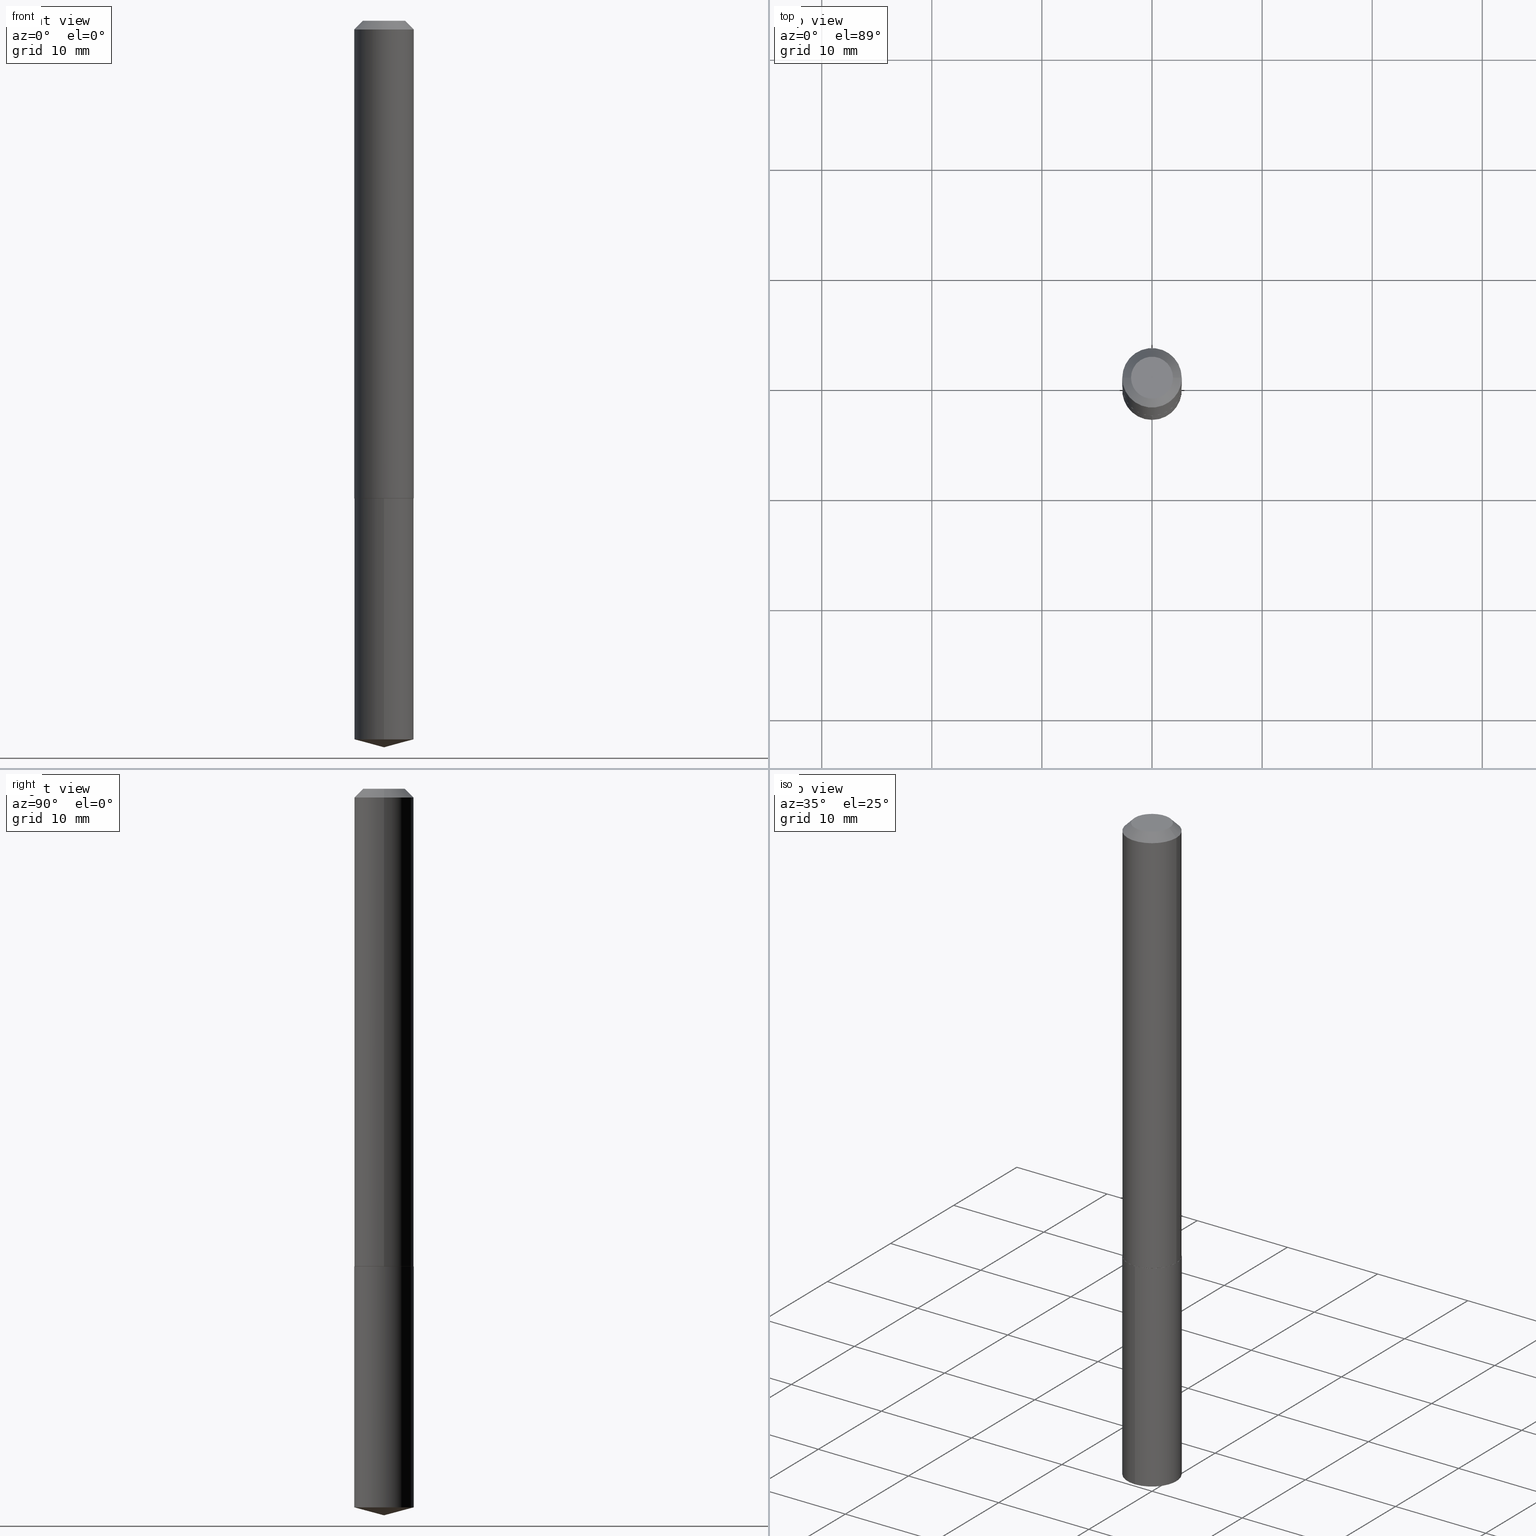
[diagram: canonical four-view strip — front | top / right | iso, engineering-drawing reading convention]
A machine part, canonical four-view strip (front | top / right | iso — engineering-drawing reading convention). The complete STEP part file that produces these views, byte-faithful:
ISO-10303-21;
HEADER;
FILE_DESCRIPTION (( 'STEP AP203' ),
    '1' );
FILE_NAME ('68989.STEP',
    '2024-04-23T14:06:40',
    ( '' ),
    ( '' ),
    'SwSTEP 2.0',
    'SolidWorks 2023',
    '' );
FILE_SCHEMA (( 'CONFIG_CONTROL_DESIGN' ));
ENDSEC;

DATA;
#1 = PERSON_AND_ORGANIZATION ( #166, #244 ) ;
#2 = EDGE_CURVE ( 'NONE', #30, #303, #114, .T. ) ;
#3 = ORIENTED_EDGE ( 'NONE', *, *, #242, .T. ) ;
#4 = DIRECTION ( 'NONE',  ( -2.445468806185136597E-29, 3.491481338843145583E-15, 1.000000000000000000 ) ) ;
#5 = VERTEX_POINT ( 'NONE', #233 ) ;
#6 = AXIS2_PLACEMENT_3D ( 'NONE', #266, #241, #385 ) ;
#7 = VECTOR ( 'NONE', #258, 39.37007874015748143 ) ;
#9 = DIRECTION ( 'NONE',  ( -2.445468806185136597E-29, 3.491481338843145583E-15, 1.000000000000000000 ) ) ;
#8 = APPROVAL_PERSON_ORGANIZATION ( #328, #306, #221 ) ;
#10 = ADVANCED_FACE ( 'NONE', ( #250 ), #268, .T. ) ;
#11 = EDGE_LOOP ( 'NONE', ( #197, #262 ) ) ;
#12 = APPROVAL_STATUS ( 'not_yet_approved' ) ;
#13 = SECURITY_CLASSIFICATION_LEVEL ( 'unclassified' ) ;
#14 = DESIGN_CONTEXT ( 'detailed design', #147, 'design' ) ;
#15 = ORIENTED_EDGE ( 'NONE', *, *, #269, .T. ) ;
#16 = PERSON_AND_ORGANIZATION ( #166, #244 ) ;
#17 = CONICAL_SURFACE ( 'NONE', #253, 0.1063000000000002415, 0.7853981633972434429 ) ;
#18 = APPROVAL_PERSON_ORGANIZATION ( #16, #333, #19 ) ;
#19 = APPROVAL_ROLE ( '' ) ;
#20 = PLANE ( 'NONE',  #230 ) ;
#21 = CARTESIAN_POINT ( 'NONE',  ( -5.839929314523221596E-48, 8.337871319499147471E-34, 2.388061258337352918E-19 ) ) ;
#22 = CIRCLE ( 'NONE', #358, 0.1063000000000002415 ) ;
#23 = EDGE_CURVE ( 'NONE', #119, #239, #315, .T. ) ;
#24 = DIRECTION ( 'NONE',  ( 1.000000000000000000, -6.982962677686265133E-15, 0.000000000000000000 ) ) ;
#25 = CARTESIAN_POINT ( 'NONE',  ( 0.1063000000000000056, -8.513977244768991407E-16, -0.03125000000000019429 ) ) ;
#26 = CARTESIAN_POINT ( 'NONE',  ( 4.178328002247923804E-29, -5.965545015547398653E-15, -1.708599999999999897 ) ) ;
#27 = CYLINDRICAL_SURFACE ( 'NONE', #351, 0.1063000000000001166 ) ;
#28 = VECTOR ( 'NONE', #375, 39.37007874015748143 ) ;
#29 = DIRECTION ( 'NONE',  ( -6.982962677686265922E-15, -1.000000000000000000, 2.569941668545873170E-15 ) ) ;
#30 = VERTEX_POINT ( 'NONE', #287 ) ;
#31 = ORIENTED_EDGE ( 'NONE', *, *, #319, .T. ) ;
#32 = APPLICATION_PROTOCOL_DEFINITION ( 'international standard', 'config_control_design', 1994, #102 ) ;
#33 =( LENGTH_UNIT ( ) NAMED_UNIT ( * ) SI_UNIT ( $, .METRE. ) );
#34 = DIRECTION ( 'NONE',  ( -1.000000000000000000, 6.982962677686267499E-15, 0.000000000000000000 ) ) ;
#35 = CIRCLE ( 'NONE', #322, 0.1063000000000000056 ) ;
#36 = ADVANCED_FACE ( 'NONE', ( #229 ), #311, .T. ) ;
#37 = CARTESIAN_POINT ( 'NONE',  ( -0.1063000000000001166, 7.553069281129873262E-16, -5.228828000940970663E-30 ) ) ;
#38 = ORIENTED_EDGE ( 'NONE', *, *, #281, .F. ) ;
#39 = DATE_AND_TIME ( #337, #184 ) ;
#40 = EDGE_LOOP ( 'NONE', ( #245, #247 ) ) ;
#41 = PERSON_AND_ORGANIZATION ( #166, #244 ) ;
#42 = CIRCLE ( 'NONE', #95, 0.1063000000000000056 ) ;
#43 = DIRECTION ( 'NONE',  ( -2.445559257304033306E-29, 3.491351807692727291E-15, 1.000000000000000000 ) ) ;
#44 = ORIENTED_EDGE ( 'NONE', *, *, #336, .F. ) ;
#45 = ORIENTED_EDGE ( 'NONE', *, *, #163, .T. ) ;
#46 = DATE_TIME_ROLE ( 'classification_date' ) ;
#47 = CC_DESIGN_PERSON_AND_ORGANIZATION_ASSIGNMENT ( #41, #331, ( #261 ) ) ;
#48 = CARTESIAN_POINT ( 'NONE',  ( 6.284729767136713731E-29, -8.972705683442572229E-15, -2.569917000844571753 ) ) ;
#49 = VERTEX_POINT ( 'NONE', #349 ) ;
#50 = SHAPE_DEFINITION_REPRESENTATION ( #190, #90 ) ;
#51 = CC_DESIGN_APPROVAL ( #312, ( #68 ) ) ;
#52 = CARTESIAN_POINT ( 'NONE',  ( 7.553069281130489560E-16, 0.1062999999999909850, -2.569917000844572197 ) ) ;
#53 = CARTESIAN_POINT ( 'NONE',  ( 4.178328002247923804E-29, -5.965545015547398653E-15, -1.708599999999999897 ) ) ;
#54 = VECTOR ( 'NONE', #175, 39.37007874015748143 ) ;
#55 = CONICAL_SURFACE ( 'NONE', #98, 0.1063000000000000056, 0.7853981633974452814 ) ;
#56 = EDGE_CURVE ( 'NONE', #49, #239, #35, .T. ) ;
#57 = ORIENTED_EDGE ( 'NONE', *, *, #140, .F. ) ;
#58 = FACE_OUTER_BOUND ( 'NONE', #364, .T. ) ;
#59 = EDGE_CURVE ( 'NONE', #30, #94, #379, .T. ) ;
#60 = AXIS2_PLACEMENT_3D ( 'NONE', #360, #323, #128 ) ;
#61 = LOCAL_TIME ( 10, 6, 40.00000000000000000, #136 ) ;
#62 = DIRECTION ( 'NONE',  ( 6.982962677686265922E-15, 1.000000000000000000, -3.491351807692727291E-15 ) ) ;
#63 = CYLINDRICAL_SURFACE ( 'NONE', #389, 0.1063000000000000056 ) ;
#64 = PERSON_AND_ORGANIZATION ( #166, #244 ) ;
#65 = AXIS2_PLACEMENT_3D ( 'NONE', #288, #108, #223 ) ;
#66 = APPROVAL_PERSON_ORGANIZATION ( #1, #312, #240 ) ;
#67 = VERTEX_POINT ( 'NONE', #338 ) ;
#68 = PRODUCT_DEFINITION ( 'UNKNOWN', '', #107, #14 ) ;
#69 = EDGE_LOOP ( 'NONE', ( #353, #246, #162, #124 ) ) ;
#70 = ADVANCED_FACE ( 'NONE', ( #85 ), #231, .T. ) ;
#71 = ORIENTED_EDGE ( 'NONE', *, *, #208, .F. ) ;
#72 = AXIS2_PLACEMENT_3D ( 'NONE', #125, #99, #257 ) ;
#73 = ORIENTED_EDGE ( 'NONE', *, *, #56, .T. ) ;
#74 = CALENDAR_DATE ( 2024, 23, 4 ) ;
#75 = DIRECTION ( 'NONE',  ( 1.000000000000000000, -6.982962677686262766E-15, 0.000000000000000000 ) ) ;
#76 = ORIENTED_EDGE ( 'NONE', *, *, #202, .F. ) ;
#77 = CLOSED_SHELL ( 'NONE', ( #172, #182, #120, #36, #116 ) ) ;
#78 = DIRECTION ( 'NONE',  ( -2.445559257304033306E-29, 3.491351807692727291E-15, 1.000000000000000000 ) ) ;
#79 = DIRECTION ( 'NONE',  ( -2.445468806185136597E-29, 3.491481338843145583E-15, 1.000000000000000000 ) ) ;
#80 = EDGE_CURVE ( 'NONE', #186, #49, #292, .T. ) ;
#81 = DIRECTION ( 'NONE',  ( -2.445468806185136597E-29, 3.491481338843145583E-15, 1.000000000000000000 ) ) ;
#82 = AXIS2_PLACEMENT_3D ( 'NONE', #291, #158, #203 ) ;
#83 = DIRECTION ( 'NONE',  ( -2.445559257304033306E-29, 3.491351807692727291E-15, 1.000000000000000000 ) ) ;
#84 = DIRECTION ( 'NONE',  ( -2.445468806185136597E-29, 3.491481338843145583E-15, 1.000000000000000000 ) ) ;
#85 = FACE_OUTER_BOUND ( 'NONE', #279, .T. ) ;
#86 = CARTESIAN_POINT ( 'NONE',  ( 4.178328002247923804E-29, -5.965545015547398653E-15, -1.708599999999999897 ) ) ;
#87 = AXIS2_PLACEMENT_3D ( 'NONE', #53, #286, #24 ) ;
#88 = DIRECTION ( 'NONE',  ( 1.000000000000000000, 0.000000000000000000, 0.000000000000000000 ) ) ;
#89 = CC_DESIGN_DATE_AND_TIME_ASSIGNMENT ( #219, #180, ( #68 ) ) ;
#90 = ADVANCED_BREP_SHAPE_REPRESENTATION ( '68989', ( #384, #252, #367 ), #177 ) ;
#91 = CARTESIAN_POINT ( 'NONE',  ( -0.1063000000000002415, -5.208492346764989429E-15, -1.708099999999999952 ) ) ;
#92 = CALENDAR_DATE ( 2024, 23, 4 ) ;
#93 = CARTESIAN_POINT ( 'NONE',  ( -7.422889326379869312E-16, -0.1063000000000089568, -2.569917000844570865 ) ) ;
#94 = VERTEX_POINT ( 'NONE', #93 ) ;
#95 = AXIS2_PLACEMENT_3D ( 'NONE', #340, #78, #189 ) ;
#96 = ORIENTED_EDGE ( 'NONE', *, *, #281, .T. ) ;
#97 = EDGE_LOOP ( 'NONE', ( #161, #126, #45, #44 ) ) ;
#98 = AXIS2_PLACEMENT_3D ( 'NONE', #235, #157, #34 ) ;
#99 = DIRECTION ( 'NONE',  ( -2.445468806185136597E-29, 3.491481338843145583E-15, 1.000000000000000000 ) ) ;
#100 = ORIENTED_EDGE ( 'NONE', *, *, #345, .T. ) ;
#101 = APPROVAL_STATUS ( 'not_yet_approved' ) ;
#102 = APPLICATION_CONTEXT ( 'configuration controlled 3d designs of mechanical parts and assemblies' ) ;
#103 = DIRECTION ( 'NONE',  ( -2.445468806185136597E-29, 3.491481338843145583E-15, 1.000000000000000000 ) ) ;
#104 = APPROVAL_DATE_TIME ( #302, #333 ) ;
#105 = DIRECTION ( 'NONE',  ( 2.438088387897960049E-29, -3.491481338843145188E-15, -1.000000000000000000 ) ) ;
#106 = VECTOR ( 'NONE', #207, 39.37007874015748143 ) ;
#107 = PRODUCT_DEFINITION_FORMATION_WITH_SPECIFIED_SOURCE ( 'ANY', '', #138, .NOT_KNOWN. ) ;
#108 = DIRECTION ( 'NONE',  ( -2.445468806185136597E-29, 3.491481338843145583E-15, 1.000000000000000000 ) ) ;
#109 = CARTESIAN_POINT ( 'NONE',  ( 4.178328002247923804E-29, -5.965545015547398653E-15, -1.708599999999999897 ) ) ;
#111 = EDGE_LOOP ( 'NONE', ( #129, #215, #381, #357 ) ) ;
#110 = AXIS2_PLACEMENT_3D ( 'NONE', #347, #9, #296 ) ;
#112 = CARTESIAN_POINT ( 'NONE',  ( 0.1058000000000005464, -6.704342466846608940E-15, -1.708599999999999897 ) ) ;
#113 = DIRECTION ( 'NONE',  ( -2.445559257304033306E-29, 3.491351807692727291E-15, 1.000000000000000000 ) ) ;
#114 = LINE ( 'NONE', #135, #387 ) ;
#115 = ORIENTED_EDGE ( 'NONE', *, *, #137, .F. ) ;
#116 = ADVANCED_FACE ( 'NONE', ( #363 ), #155, .F. ) ;
#117 = FACE_OUTER_BOUND ( 'NONE', #265, .T. ) ;
#118 = CARTESIAN_POINT ( 'NONE',  ( 0.1063000000000002415, -6.706088207516028077E-15, -1.708099999999999952 ) ) ;
#119 = VERTEX_POINT ( 'NONE', #118 ) ;
#120 = ADVANCED_FACE ( 'NONE', ( #210 ), #372, .T. ) ;
#121 = FACE_OUTER_BOUND ( 'NONE', #327, .T. ) ;
#122 = DIMENSIONAL_EXPONENTS ( 1.000000000000000000, 0.000000000000000000, 0.000000000000000000, 0.000000000000000000, 0.000000000000000000, 0.000000000000000000, 0.000000000000000000 ) ;
#123 = FACE_OUTER_BOUND ( 'NONE', #368, .T. ) ;
#124 = ORIENTED_EDGE ( 'NONE', *, *, #378, .F. ) ;
#125 = CARTESIAN_POINT ( 'NONE',  ( 4.177105267844832123E-29, -5.963799274877977150E-15, -1.708099999999999952 ) ) ;
#126 = ORIENTED_EDGE ( 'NONE', *, *, #228, .T. ) ;
#127 = AXIS2_PLACEMENT_3D ( 'NONE', #282, #283, #343 ) ;
#128 = DIRECTION ( 'NONE',  ( -6.982962677686266711E-15, -1.000000000000000000, 3.510303681827621500E-15 ) ) ;
#129 = ORIENTED_EDGE ( 'NONE', *, *, #80, .F. ) ;
#130 = DIRECTION ( 'NONE',  ( -2.445468806185136597E-29, 3.491481338843145583E-15, 1.000000000000000000 ) ) ;
#131 = VERTEX_POINT ( 'NONE', #213 ) ;
#132 = COORDINATED_UNIVERSAL_TIME_OFFSET ( 5, 0, .BEHIND. ) ;
#133 = ORIENTED_EDGE ( 'NONE', *, *, #23, .F. ) ;
#134 = COORDINATED_UNIVERSAL_TIME_OFFSET ( 5, 0, .BEHIND. ) ;
#135 = CARTESIAN_POINT ( 'NONE',  ( 6.354543884529420108E-29, -9.071928537108783114E-15, -2.598399999999999821 ) ) ;
#136 = COORDINATED_UNIVERSAL_TIME_OFFSET ( 5, 0, .BEHIND. ) ;
#137 = EDGE_CURVE ( 'NONE', #94, #5, #326, .T. ) ;
#138 = PRODUCT ( '68989', '68989', '', ( #206 ) ) ;
#139 = CARTESIAN_POINT ( 'NONE',  ( 6.284729767136713731E-29, -8.972705683442572229E-15, -2.569917000844571753 ) ) ;
#140 = EDGE_CURVE ( 'NONE', #186, #119, #22, .T. ) ;
#141 = DIRECTION ( 'NONE',  ( 1.000000000000000000, -6.982962677686265922E-15, 4.876182450887181548E-29 ) ) ;
#142 = VECTOR ( 'NONE', #167, 39.37007874015748143 ) ;
#143 = FACE_OUTER_BOUND ( 'NONE', #276, .T. ) ;
#144 = EDGE_CURVE ( 'NONE', #303, #94, #332, .T. ) ;
#145 = CARTESIAN_POINT ( 'NONE',  ( 7.642090019328599159E-31, -1.091087918388489774E-16, -0.03125000000000019429 ) ) ;
#146 = DIRECTION ( 'NONE',  ( 1.000000000000000000, -6.982962677686266711E-15, 4.876176775795935793E-29 ) ) ;
#147 = APPLICATION_CONTEXT ( 'configuration controlled 3d designs of mechanical parts and assemblies' ) ;
#148 = AXIS2_PLACEMENT_3D ( 'NONE', #21, #81, #141 ) ;
#149 = LENGTH_MEASURE_WITH_UNIT ( LENGTH_MEASURE( 0.02539999999999999897 ), #33 );
#150 = ADVANCED_FACE ( 'NONE', ( #260 ), #275, .T. ) ;
#151 = PERSON_AND_ORGANIZATION_ROLE ( 'design_owner' ) ;
#152 = DIRECTION ( 'NONE',  ( -2.445559257304033306E-29, 3.491351807692727291E-15, 1.000000000000000000 ) ) ;
#153 = AXIS2_PLACEMENT_3D ( 'NONE', #284, #342, #176 ) ;
#154 = DIRECTION ( 'NONE',  ( -6.982962677686265922E-15, -1.000000000000000000, 2.569941668545873170E-15 ) ) ;
#155 = PLANE ( 'NONE',  #243 ) ;
#156 = EDGE_LOOP ( 'NONE', ( #214, #289, #160 ) ) ;
#157 = DIRECTION ( 'NONE',  ( 2.445468806185136597E-29, -3.491481338843145583E-15, -1.000000000000000000 ) ) ;
#158 = DIRECTION ( 'NONE',  ( -2.445468806185136597E-29, 3.491481338843145583E-15, 1.000000000000000000 ) ) ;
#159 = CARTESIAN_POINT ( 'NONE',  ( 4.178328002247923804E-29, -5.965545015547398653E-15, -1.708599999999999897 ) ) ;
#160 = ORIENTED_EDGE ( 'NONE', *, *, #144, .F. ) ;
#161 = ORIENTED_EDGE ( 'NONE', *, *, #319, .F. ) ;
#162 = ORIENTED_EDGE ( 'NONE', *, *, #137, .T. ) ;
#163 = EDGE_CURVE ( 'NONE', #239, #49, #294, .T. ) ;
#164 = CARTESIAN_POINT ( 'NONE',  ( 0.1063000000000001166, -7.422889326380509276E-16, 5.183375912671085656E-30 ) ) ;
#165 = CIRCLE ( 'NONE', #211, 0.1063000000000000056 ) ;
#166 = PERSON ( 'UNSPECIFIED', 'UNSPECIFIED', 'UNSPECIFIED', ('UNSPECIFIED'), ('UNSPECIFIED'), ('UNSPECIFIED') ) ;
#167 = DIRECTION ( 'NONE',  ( 0.7071067811865453523, -7.319954787623248157E-15, -0.7071067811865496822 ) ) ;
#168 = CARTESIAN_POINT ( 'NONE',  ( -0.1058000000000005464, -5.211141573939099053E-15, -1.708599999999999897 ) ) ;
#169 = CONICAL_SURFACE ( 'NONE', #6, 146.9311341562558084, 1.308996938995748538 ) ;
#170 = LOCAL_TIME ( 10, 6, 40.00000000000000000, #355 ) ;
#171 = LINE ( 'NONE', #227, #142 ) ;
#172 = ADVANCED_FACE ( 'NONE', ( #123 ), #63, .T. ) ;
#173 = AXIS2_PLACEMENT_3D ( 'NONE', #26, #113, #264 ) ;
#175 = DIRECTION ( 'NONE',  ( -2.445468806185136877E-29, 3.491481338843145188E-15, 1.000000000000000000 ) ) ;
#174 = CIRCLE ( 'NONE', #87, 0.1058000000000005464 ) ;
#176 = DIRECTION ( 'NONE',  ( 1.000000000000000000, -6.982962677686262766E-15, 0.000000000000000000 ) ) ;
#177 =( GEOMETRIC_REPRESENTATION_CONTEXT ( 3 ) GLOBAL_UNCERTAINTY_ASSIGNED_CONTEXT ( ( #359 ) ) GLOBAL_UNIT_ASSIGNED_CONTEXT ( ( #263, #383, #201 ) ) REPRESENTATION_CONTEXT ( 'NONE', 'WORKASPACE' ) );
#178 = PERSON_AND_ORGANIZATION_ROLE ( 'creator' ) ;
#179 = ORIENTED_EDGE ( 'NONE', *, *, #254, .T. ) ;
#180 = DATE_TIME_ROLE ( 'creation_date' ) ;
#181 = ORIENTED_EDGE ( 'NONE', *, *, #202, .T. ) ;
#182 = ADVANCED_FACE ( 'NONE', ( #121 ), #169, .T. ) ;
#183 = APPROVAL_DATE_TIME ( #39, #306 ) ;
#184 = LOCAL_TIME ( 10, 6, 40.00000000000000000, #132 ) ;
#185 = ADVANCED_FACE ( 'NONE', ( #117 ), #17, .T. ) ;
#186 = VERTEX_POINT ( 'NONE', #354 ) ;
#187 = CALENDAR_DATE ( 2024, 23, 4 ) ;
#188 = AXIS2_PLACEMENT_3D ( 'NONE', #48, #83, #196 ) ;
#189 = DIRECTION ( 'NONE',  ( -6.982962677686265922E-15, -1.000000000000000000, 2.569941668545873170E-15 ) ) ;
#190 = PRODUCT_DEFINITION_SHAPE ( 'NONE', 'NONE',  #68 ) ;
#191 = CARTESIAN_POINT ( 'NONE',  ( 7.553069281130281498E-16, 0.1062999999999940520, -1.708600000000000119 ) ) ;
#192 = CC_DESIGN_PERSON_AND_ORGANIZATION_ASSIGNMENT ( #277, #280, ( #107 ) ) ;
#193 = CIRCLE ( 'NONE', #72, 0.1063000000000002415 ) ;
#194 = DIRECTION ( 'NONE',  ( 6.863315791527694259E-15, 0.9659258262890694224, 0.2588190451025160765 ) ) ;
#195 = DIRECTION ( 'NONE',  ( -1.000000000000000000, 6.982962677686265922E-15, -4.876176775795935793E-29 ) ) ;
#196 = DIRECTION ( 'NONE',  ( -6.982962677686265922E-15, -1.000000000000000000, 5.139883337091746339E-15 ) ) ;
#197 = ORIENTED_EDGE ( 'NONE', *, *, #298, .T. ) ;
#198 = PLANE ( 'NONE',  #127 ) ;
#199 = CC_DESIGN_DATE_AND_TIME_ASSIGNMENT ( #325, #46, ( #261 ) ) ;
#200 = DIRECTION ( 'NONE',  ( -1.000000000000000000, 6.982962677686267499E-15, 0.000000000000000000 ) ) ;
#201 =( NAMED_UNIT ( * ) SI_UNIT ( $, .STERADIAN. ) SOLID_ANGLE_UNIT ( ) );
#202 = EDGE_CURVE ( 'NONE', #304, #186, #356, .T. ) ;
#203 = DIRECTION ( 'NONE',  ( 1.000000000000000000, -6.982962677686267499E-15, 0.000000000000000000 ) ) ;
#204 = AXIS2_PLACEMENT_3D ( 'NONE', #109, #79, #377 ) ;
#205 = ORIENTED_EDGE ( 'NONE', *, *, #228, .F. ) ;
#206 = MECHANICAL_CONTEXT ( 'NONE', #102, 'mechanical' ) ;
#207 = DIRECTION ( 'NONE',  ( -0.7071067811864026886, 7.493145998869830357E-15, 0.7071067811866923458 ) ) ;
#208 = EDGE_CURVE ( 'NONE', #119, #186, #193, .T. ) ;
#209 = DATE_AND_TIME ( #92, #170 ) ;
#210 = FACE_OUTER_BOUND ( 'NONE', #156, .T. ) ;
#211 = AXIS2_PLACEMENT_3D ( 'NONE', #139, #251, #371 ) ;
#212 = ORIENTED_EDGE ( 'NONE', *, *, #242, .F. ) ;
#213 = CARTESIAN_POINT ( 'NONE',  ( -0.07505000000000001947, 5.786257448797778683E-16, 2.388061258298797245E-19 ) ) ;
#214 = ORIENTED_EDGE ( 'NONE', *, *, #2, .F. ) ;
#215 = ORIENTED_EDGE ( 'NONE', *, *, #140, .T. ) ;
#216 = ADVANCED_FACE ( 'NONE', ( #58 ), #20, .F. ) ;
#217 = CIRCLE ( 'NONE', #65, 0.07505000000000000560 ) ;
#218 = ORIENTED_EDGE ( 'NONE', *, *, #269, .F. ) ;
#219 = DATE_AND_TIME ( #187, #390 ) ;
#220 = CARTESIAN_POINT ( 'NONE',  ( 4.177105267844832123E-29, -5.963799274877977150E-15, -1.708099999999999952 ) ) ;
#221 = APPROVAL_ROLE ( '' ) ;
#222 = DIRECTION ( 'NONE',  ( 1.000000000000000000, -6.982962677686267499E-15, 0.000000000000000000 ) ) ;
#223 = DIRECTION ( 'NONE',  ( 1.000000000000000000, -6.982962677686265922E-15, 4.876182450887181548E-29 ) ) ;
#224 = CC_DESIGN_APPROVAL ( #306, ( #261 ) ) ;
#225 = LINE ( 'NONE', #374, #28 ) ;
#226 = CC_DESIGN_PERSON_AND_ORGANIZATION_ASSIGNMENT ( #320, #151, ( #138 ) ) ;
#227 = CARTESIAN_POINT ( 'NONE',  ( 0.1063000000000000056, -8.383797290019627421E-16, -0.03125000000000019429 ) ) ;
#228 = EDGE_CURVE ( 'NONE', #324, #239, #171, .T. ) ;
#229 = FACE_OUTER_BOUND ( 'NONE', #69, .T. ) ;
#230 = AXIS2_PLACEMENT_3D ( 'NONE', #314, #105, #195 ) ;
#231 = CYLINDRICAL_SURFACE ( 'NONE', #110, 0.1063000000000001166 ) ;
#232 = LINE ( 'NONE', #310, #7 ) ;
#233 = CARTESIAN_POINT ( 'NONE',  ( -7.422889326380084277E-16, -0.1063000000000059592, -1.708599999999999675 ) ) ;
#234 = PRODUCT_RELATED_PRODUCT_CATEGORY ( 'detail', '', ( #138 ) ) ;
#235 = CARTESIAN_POINT ( 'NONE',  ( 7.642090019328599159E-31, -1.091087918388489774E-16, -0.03125000000000019429 ) ) ;
#236 = CARTESIAN_POINT ( 'NONE',  ( 6.354232084615305213E-29, -9.072371170955992256E-15, -2.598399999999999821 ) ) ;
#237 = CLOSED_SHELL ( 'NONE', ( #10, #70, #150, #273, #185, #256, #376, #216 ) ) ;
#238 = CARTESIAN_POINT ( 'NONE',  ( 4.177105267844832123E-29, -5.963799274877977150E-15, -1.708099999999999952 ) ) ;
#239 = VERTEX_POINT ( 'NONE', #25 ) ;
#240 = APPROVAL_ROLE ( '' ) ;
#241 = DIRECTION ( 'NONE',  ( -2.445559257304033306E-29, 3.491351807692727291E-15, 1.000000000000000000 ) ) ;
#242 = EDGE_CURVE ( 'NONE', #272, #119, #232, .T. ) ;
#243 = AXIS2_PLACEMENT_3D ( 'NONE', #159, #271, #62 ) ;
#244 = ORGANIZATION ( 'UNSPECIFIED', 'UNSPECIFIED', '' ) ;
#245 = ORIENTED_EDGE ( 'NONE', *, *, #352, .F. ) ;
#246 = ORIENTED_EDGE ( 'NONE', *, *, #144, .T. ) ;
#247 = ORIENTED_EDGE ( 'NONE', *, *, #254, .F. ) ;
#248 = ORIENTED_EDGE ( 'NONE', *, *, #298, .F. ) ;
#249 = DIRECTION ( 'NONE',  ( 2.445468806185136597E-29, -3.491481338843145583E-15, -1.000000000000000000 ) ) ;
#250 = FACE_OUTER_BOUND ( 'NONE', #97, .T. ) ;
#251 = DIRECTION ( 'NONE',  ( -2.445559257304033306E-29, 3.491351807692727291E-15, 1.000000000000000000 ) ) ;
#252 = MANIFOLD_SOLID_BREP ( 'Body-Move/Copy2[2]', #237 ) ;
#253 = AXIS2_PLACEMENT_3D ( 'NONE', #238, #4, #270 ) ;
#254 = EDGE_CURVE ( 'NONE', #304, #272, #290, .T. ) ;
#255 = CARTESIAN_POINT ( 'NONE',  ( 0.07505000000000001947, -6.766300518673582083E-16, 2.388061258379330487E-19 ) ) ;
#256 = ADVANCED_FACE ( 'NONE', ( #313 ), #27, .T. ) ;
#257 = DIRECTION ( 'NONE',  ( 1.000000000000000000, -6.982962677686262766E-15, 0.000000000000000000 ) ) ;
#258 = DIRECTION ( 'NONE',  ( 0.7071067811864026886, -2.468850131080739687E-15, 0.7071067811866923458 ) ) ;
#259 = DIRECTION ( 'NONE',  ( -6.745023994389839133E-15, -0.9659258262890676461, 0.2588190451025227934 ) ) ;
#260 = FACE_OUTER_BOUND ( 'NONE', #278, .T. ) ;
#261 = SECURITY_CLASSIFICATION ( '', '', #13 ) ;
#262 = ORIENTED_EDGE ( 'NONE', *, *, #378, .T. ) ;
#263 =( CONVERSION_BASED_UNIT ( 'INCH', #149 ) LENGTH_UNIT ( ) NAMED_UNIT ( #122 ) );
#264 = DIRECTION ( 'NONE',  ( -6.982962677686265922E-15, -1.000000000000000000, 2.569941668545873170E-15 ) ) ;
#265 = EDGE_LOOP ( 'NONE', ( #76, #179, #3, #57 ) ) ;
#266 = CARTESIAN_POINT ( 'NONE',  ( -8.992747389438378719E-28, 1.283826457244214467E-13, 36.77167874015748339 ) ) ;
#267 = APPLICATION_PROTOCOL_DEFINITION ( 'international standard', 'config_control_design', 1994, #147 ) ;
#268 = CONICAL_SURFACE ( 'NONE', #366, 0.1063000000000000056, 0.7853981633974452814 ) ;
#269 = EDGE_CURVE ( 'NONE', #131, #324, #217, .T. ) ;
#270 = DIRECTION ( 'NONE',  ( 1.000000000000000000, -6.982962677686262766E-15, 0.000000000000000000 ) ) ;
#271 = DIRECTION ( 'NONE',  ( 2.445559257304033025E-29, -3.491351807692727291E-15, -1.000000000000000000 ) ) ;
#272 = VERTEX_POINT ( 'NONE', #112 ) ;
#273 = ADVANCED_FACE ( 'NONE', ( #348 ), #198, .F. ) ;
#274 = ORIENTED_EDGE ( 'NONE', *, *, #352, .T. ) ;
#275 = CONICAL_SURFACE ( 'NONE', #153, 0.1063000000000002415, 0.7853981633972434429 ) ;
#276 = EDGE_LOOP ( 'NONE', ( #205, #218, #299, #73 ) ) ;
#277 = PERSON_AND_ORGANIZATION ( #166, #244 ) ;
#278 = EDGE_LOOP ( 'NONE', ( #274, #181, #71, #212 ) ) ;
#279 = EDGE_LOOP ( 'NONE', ( #361, #344, #330, #133 ) ) ;
#280 = PERSON_AND_ORGANIZATION_ROLE ( 'design_supplier' ) ;
#281 = EDGE_CURVE ( 'NONE', #94, #303, #165, .T. ) ;
#282 = CARTESIAN_POINT ( 'NONE',  ( 4.178328002247923804E-29, -5.965545015547398653E-15, -1.708599999999999897 ) ) ;
#283 = DIRECTION ( 'NONE',  ( -2.438088387897960049E-29, 3.491481338843145188E-15, 1.000000000000000000 ) ) ;
#284 = CARTESIAN_POINT ( 'NONE',  ( 4.177105267844832123E-29, -5.963799274877977150E-15, -1.708099999999999952 ) ) ;
#285 = CIRCLE ( 'NONE', #373, 0.1063000000000000056 ) ;
#286 = DIRECTION ( 'NONE',  ( -2.445468806185136597E-29, 3.491481338843145583E-15, 1.000000000000000000 ) ) ;
#287 = CARTESIAN_POINT ( 'NONE',  ( 6.354541174178800121E-29, -9.071928537108783114E-15, -2.598399999999999821 ) ) ;
#288 = CARTESIAN_POINT ( 'NONE',  ( -5.839929314523221596E-48, 8.337871319499147471E-34, 2.388061258337352918E-19 ) ) ;
#289 = ORIENTED_EDGE ( 'NONE', *, *, #59, .T. ) ;
#290 = CIRCLE ( 'NONE', #204, 0.1058000000000005464 ) ;
#291 = CARTESIAN_POINT ( 'NONE',  ( 7.642090019328599159E-31, -1.091087918388489774E-16, -0.03125000000000019429 ) ) ;
#292 = LINE ( 'NONE', #37, #346 ) ;
#293 = APPROVAL_STATUS ( 'not_yet_approved' ) ;
#294 = CIRCLE ( 'NONE', #82, 0.1063000000000000056 ) ;
#296 = DIRECTION ( 'NONE',  ( 1.000000000000000000, -6.982962677686266711E-15, 4.876176775795935793E-29 ) ) ;
#295 = CC_DESIGN_APPROVAL ( #333, ( #107 ) ) ;
#297 = DIRECTION ( 'NONE',  ( -2.445559257304033306E-29, 3.491351807692727291E-15, 1.000000000000000000 ) ) ;
#298 = EDGE_CURVE ( 'NONE', #5, #67, #42, .T. ) ;
#299 = ORIENTED_EDGE ( 'NONE', *, *, #336, .T. ) ;
#300 = PERSON_AND_ORGANIZATION ( #166, #244 ) ;
#301 = ORIENTED_EDGE ( 'NONE', *, *, #59, .F. ) ;
#302 = DATE_AND_TIME ( #365, #61 ) ;
#303 = VERTEX_POINT ( 'NONE', #52 ) ;
#304 = VERTEX_POINT ( 'NONE', #168 ) ;
#305 = VECTOR ( 'NONE', #43, 39.37007874015748143 ) ;
#306 = APPROVAL ( #12, 'UNSPECIFIED' ) ;
#307 = DIRECTION ( 'NONE',  ( -2.445559257304033306E-29, 3.491351807692727291E-15, 1.000000000000000000 ) ) ;
#308 = CIRCLE ( 'NONE', #148, 0.07505000000000000560 ) ;
#309 = CC_DESIGN_SECURITY_CLASSIFICATION ( #261, ( #107 ) ) ;
#310 = CARTESIAN_POINT ( 'NONE',  ( 0.1063000000000002415, -6.706088207516028077E-15, -1.708099999999999952 ) ) ;
#311 = CYLINDRICAL_SURFACE ( 'NONE', #173, 0.1063000000000000056 ) ;
#312 = APPROVAL ( #293, 'UNSPECIFIED' ) ;
#313 = FACE_OUTER_BOUND ( 'NONE', #111, .T. ) ;
#314 = CARTESIAN_POINT ( 'NONE',  ( -2.919964657261610798E-48, 4.168935659749573735E-34, 1.194030629168676459E-19 ) ) ;
#315 = LINE ( 'NONE', #164, #54 ) ;
#316 = VECTOR ( 'NONE', #259, 39.37007874015748854 ) ;
#317 = LOCAL_TIME ( 10, 6, 40.00000000000000000, #134 ) ;
#318 = CARTESIAN_POINT ( 'NONE',  ( 4.178328002247923804E-29, -5.965545015547398653E-15, -1.708599999999999897 ) ) ;
#319 = EDGE_CURVE ( 'NONE', #324, #131, #308, .T. ) ;
#320 = PERSON_AND_ORGANIZATION ( #166, #244 ) ;
#321 = APPROVAL_DATE_TIME ( #209, #312 ) ;
#322 = AXIS2_PLACEMENT_3D ( 'NONE', #370, #103, #222 ) ;
#323 = DIRECTION ( 'NONE',  ( -2.445559257304033306E-29, 3.491351807692727291E-15, 1.000000000000000000 ) ) ;
#324 = VERTEX_POINT ( 'NONE', #255 ) ;
#325 = DATE_AND_TIME ( #74, #317 ) ;
#326 = LINE ( 'NONE', #329, #305 ) ;
#327 = EDGE_LOOP ( 'NONE', ( #301, #334, #38 ) ) ;
#328 = PERSON_AND_ORGANIZATION ( #166, #244 ) ;
#329 = CARTESIAN_POINT ( 'NONE',  ( -7.422889326380084277E-16, -0.1063000000000059592, -1.708599999999999675 ) ) ;
#330 = ORIENTED_EDGE ( 'NONE', *, *, #163, .F. ) ;
#331 = PERSON_AND_ORGANIZATION_ROLE ( 'classification_officer' ) ;
#332 = CIRCLE ( 'NONE', #188, 0.1063000000000000056 ) ;
#333 = APPROVAL ( #101, 'UNSPECIFIED' ) ;
#334 = ORIENTED_EDGE ( 'NONE', *, *, #2, .T. ) ;
#335 = PERSON_AND_ORGANIZATION_ROLE ( 'creator' ) ;
#336 = EDGE_CURVE ( 'NONE', #131, #49, #225, .T. ) ;
#337 = CALENDAR_DATE ( 2024, 23, 4 ) ;
#338 = CARTESIAN_POINT ( 'NONE',  ( 7.553069281130493504E-16, 0.1062999999999940243, -1.708600000000000119 ) ) ;
#339 = VECTOR ( 'NONE', #307, 39.37007874015748143 ) ;
#340 = CARTESIAN_POINT ( 'NONE',  ( 4.178328002247923804E-29, -5.965545015547398653E-15, -1.708599999999999897 ) ) ;
#341 = LINE ( 'NONE', #191, #339 ) ;
#342 = DIRECTION ( 'NONE',  ( -2.445468806185136597E-29, 3.491481338843145583E-15, 1.000000000000000000 ) ) ;
#343 = DIRECTION ( 'NONE',  ( 1.000000000000000000, -6.982962677686265922E-15, 4.876176775795935793E-29 ) ) ;
#344 = ORIENTED_EDGE ( 'NONE', *, *, #80, .T. ) ;
#345 = EDGE_CURVE ( 'NONE', #303, #67, #341, .T. ) ;
#346 = VECTOR ( 'NONE', #386, 39.37007874015748143 ) ;
#347 = CARTESIAN_POINT ( 'NONE',  ( 0.000000000000000000, 0.000000000000000000, 0.000000000000000000 ) ) ;
#348 = FACE_OUTER_BOUND ( 'NONE', #40, .T. ) ;
#349 = CARTESIAN_POINT ( 'NONE',  ( -0.1063000000000000056, -2.281147105245424221E-15, -0.03125000000000019429 ) ) ;
#350 = DIRECTION ( 'NONE',  ( 0.000000000000000000, 0.000000000000000000, 1.000000000000000000 ) ) ;
#351 = AXIS2_PLACEMENT_3D ( 'NONE', #380, #84, #146 ) ;
#352 = EDGE_CURVE ( 'NONE', #272, #304, #174, .T. ) ;
#353 = ORIENTED_EDGE ( 'NONE', *, *, #345, .F. ) ;
#354 = CARTESIAN_POINT ( 'NONE',  ( -0.1063000000000002415, -5.208492346764989429E-15, -1.708099999999999952 ) ) ;
#355 = COORDINATED_UNIVERSAL_TIME_OFFSET ( 5, 0, .BEHIND. ) ;
#356 = LINE ( 'NONE', #91, #106 ) ;
#357 = ORIENTED_EDGE ( 'NONE', *, *, #56, .F. ) ;
#358 = AXIS2_PLACEMENT_3D ( 'NONE', #220, #130, #75 ) ;
#359 = UNCERTAINTY_MEASURE_WITH_UNIT (LENGTH_MEASURE( 1.000000000000000082E-05 ), #263, 'distance_accuracy_value', 'NONE');
#360 = CARTESIAN_POINT ( 'NONE',  ( -8.992747389438378719E-28, 1.283826457244214467E-13, 36.77167874015748339 ) ) ;
#361 = ORIENTED_EDGE ( 'NONE', *, *, #208, .T. ) ;
#362 = COORDINATED_UNIVERSAL_TIME_OFFSET ( 5, 0, .BEHIND. ) ;
#363 = FACE_OUTER_BOUND ( 'NONE', #11, .T. ) ;
#364 = EDGE_LOOP ( 'NONE', ( #15, #31 ) ) ;
#365 = CALENDAR_DATE ( 2024, 23, 4 ) ;
#366 = AXIS2_PLACEMENT_3D ( 'NONE', #145, #249, #200 ) ;
#367 = AXIS2_PLACEMENT_3D ( 'NONE', #388, #350, #88 ) ;
#368 = EDGE_LOOP ( 'NONE', ( #96, #100, #248, #115 ) ) ;
#369 = CC_DESIGN_PERSON_AND_ORGANIZATION_ASSIGNMENT ( #300, #335, ( #107 ) ) ;
#370 = CARTESIAN_POINT ( 'NONE',  ( 7.642090019328599159E-31, -1.091087918388489774E-16, -0.03125000000000019429 ) ) ;
#371 = DIRECTION ( 'NONE',  ( -6.982962677686265922E-15, -1.000000000000000000, 5.139883337091746339E-15 ) ) ;
#372 = CONICAL_SURFACE ( 'NONE', #60, 146.9311341562558084, 1.308996938995748538 ) ;
#373 = AXIS2_PLACEMENT_3D ( 'NONE', #86, #297, #29 ) ;
#374 = CARTESIAN_POINT ( 'NONE',  ( -0.1063000000000000056, 6.331801407992013339E-16, -0.03125000000000019429 ) ) ;
#375 = DIRECTION ( 'NONE',  ( -0.7071067811865453523, 2.468850131082234184E-15, -0.7071067811865496822 ) ) ;
#376 = ADVANCED_FACE ( 'NONE', ( #143 ), #55, .T. ) ;
#377 = DIRECTION ( 'NONE',  ( 1.000000000000000000, -6.982962677686265133E-15, 0.000000000000000000 ) ) ;
#378 = EDGE_CURVE ( 'NONE', #67, #5, #285, .T. ) ;
#379 = LINE ( 'NONE', #236, #316 ) ;
#380 = CARTESIAN_POINT ( 'NONE',  ( 0.000000000000000000, 0.000000000000000000, 0.000000000000000000 ) ) ;
#381 = ORIENTED_EDGE ( 'NONE', *, *, #23, .T. ) ;
#382 = CC_DESIGN_PERSON_AND_ORGANIZATION_ASSIGNMENT ( #64, #178, ( #68 ) ) ;
#383 =( NAMED_UNIT ( * ) PLANE_ANGLE_UNIT ( ) SI_UNIT ( $, .RADIAN. ) );
#384 = MANIFOLD_SOLID_BREP ( 'Body-Move/Copy2[1]', #77 ) ;
#385 = DIRECTION ( 'NONE',  ( -6.982962677686266711E-15, -1.000000000000000000, 3.510303681827621500E-15 ) ) ;
#386 = DIRECTION ( 'NONE',  ( -2.445468806185136877E-29, 3.491481338843145188E-15, 1.000000000000000000 ) ) ;
#387 = VECTOR ( 'NONE', #194, 39.37007874015748143 ) ;
#388 = CARTESIAN_POINT ( 'NONE',  ( 0.000000000000000000, 0.000000000000000000, 0.000000000000000000 ) ) ;
#389 = AXIS2_PLACEMENT_3D ( 'NONE', #318, #152, #154 ) ;
#390 = LOCAL_TIME ( 10, 6, 40.00000000000000000, #362 ) ;
ENDSEC;
END-ISO-10303-21;
